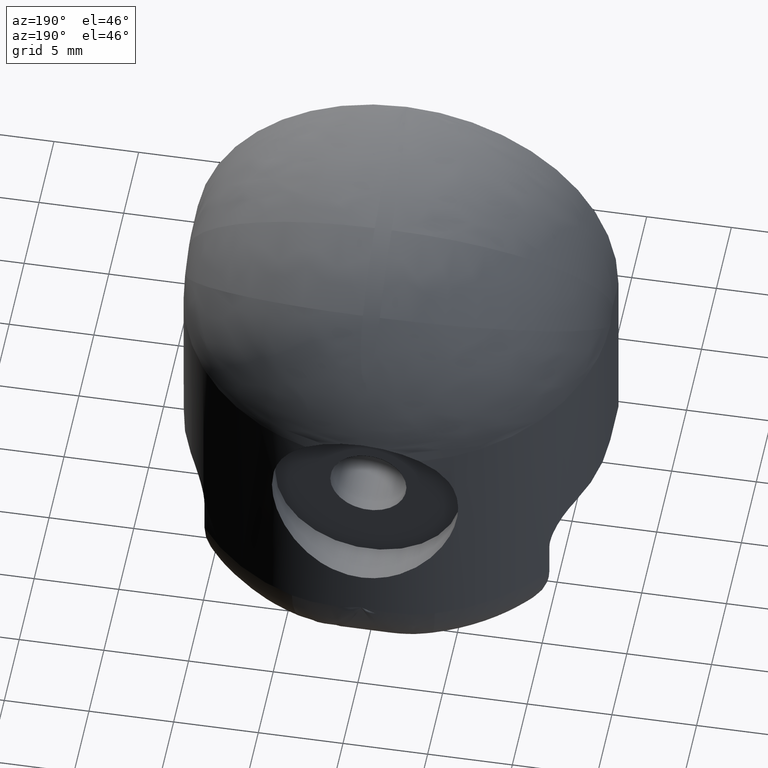
[diagram: clean part render]
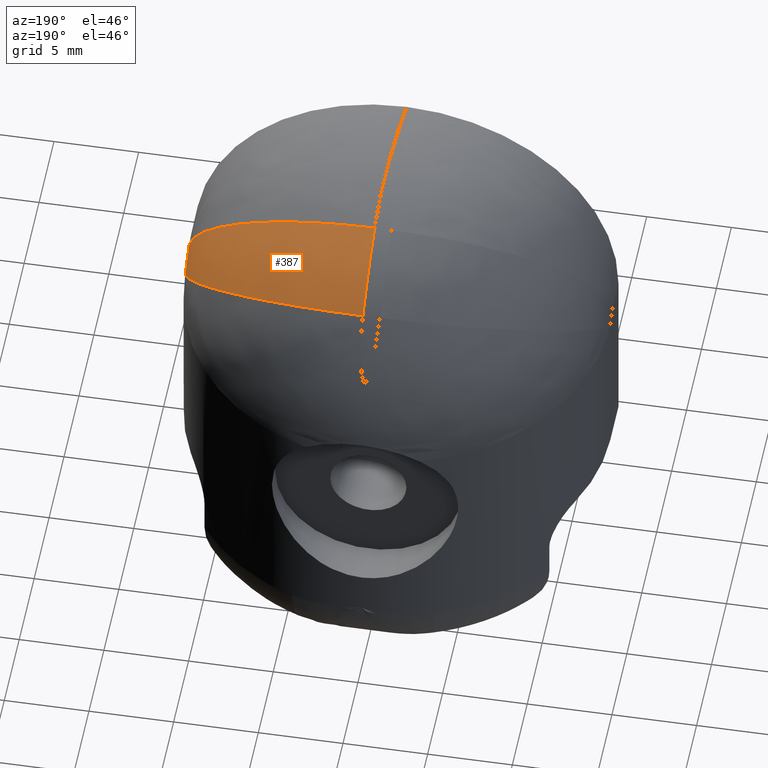
[diagram: same view with one face highlighted and labeled with its STEP entity id]
A machine part, auxiliary view. The second image highlights one B-rep face of the part: STEP entity #387.
In plain terms, the highlighted face is a freeform B-spline surface patch.
Its self-contained STEP definition (entity closure, byte-faithful):
#16=(
BOUNDED_SURFACE()
B_SPLINE_SURFACE(2,2,((#1181,#1182,#1183),(#1184,#1185,#1186),(#1187,#1188,
#1189)),.UNSPECIFIED.,.F.,.F.,.F.)
B_SPLINE_SURFACE_WITH_KNOTS((3,3),(3,3),(-1.44560289664734E-16,1.5707963267949),
(2.27793224240123,2.60955888874682),.UNSPECIFIED.)
GEOMETRIC_REPRESENTATION_ITEM()
RATIONAL_B_SPLINE_SURFACE(((1.,0.986284438878914,1.),(0.707106781186548,
0.69740841491005,0.707106781186548),(1.,0.986284438878914,1.)))
REPRESENTATION_ITEM('')
SURFACE()
);
#86=FACE_OUTER_BOUND('',#111,.T.);
#111=EDGE_LOOP('',(#329,#330,#331,#332));
#152=CIRCLE('',#439,12.);
#155=CIRCLE('',#442,12.);
#156=CIRCLE('',#443,3.61734693877551);
#157=CIRCLE('',#444,15.6173469387755);
#177=VERTEX_POINT('',#828);
#188=VERTEX_POINT('',#1062);
#189=VERTEX_POINT('',#1156);
#190=VERTEX_POINT('',#1157);
#235=EDGE_CURVE('',#188,#177,#152,.T.);
#238=EDGE_CURVE('',#189,#190,#155,.T.);
#241=EDGE_CURVE('',#189,#177,#156,.T.);
#242=EDGE_CURVE('',#188,#190,#157,.T.);
#329=ORIENTED_EDGE('',*,*,#238,.F.);
#330=ORIENTED_EDGE('',*,*,#241,.T.);
#331=ORIENTED_EDGE('',*,*,#235,.F.);
#332=ORIENTED_EDGE('',*,*,#242,.T.);
#387=ADVANCED_FACE('',(#86),#16,.F.);
#439=AXIS2_PLACEMENT_3D('',#1078,#514,#515);
#442=AXIS2_PLACEMENT_3D('',#1158,#520,#521);
#443=AXIS2_PLACEMENT_3D('',#1190,#522,#523);
#444=AXIS2_PLACEMENT_3D('',#1191,#524,#525);
#514=DIRECTION('center_axis',(2.10369389344927E-16,0.649659088089581,-0.760225669957687));
#515=DIRECTION('ref_axis',(5.78241158658936E-18,0.760225669957687,0.649659088089581));
#520=DIRECTION('center_axis',(-3.16482927888337E-16,-0.861777150916785,
0.507287041188466));
#521=DIRECTION('ref_axis',(1.,-4.04768811061255E-17,5.55111512312578E-16));
#522=DIRECTION('center_axis',(-1.,0.,0.));
#523=DIRECTION('ref_axis',(0.,0.695248106443174,0.718769831369668));
#524=DIRECTION('center_axis',(1.,0.,0.));
#525=DIRECTION('ref_axis',(0.,0.695248106443174,0.718769831369668));
#828=CARTESIAN_POINT('',(12.5,1.37499999999999,2.08269537477302));
#1062=CARTESIAN_POINT('',(0.499999999999997,10.4977080394922,9.87860443184799));
#1078=CARTESIAN_POINT('Origin',(0.499999999999996,1.375,2.08269537477302));
#1156=CARTESIAN_POINT('',(12.5,0.460033225523581,2.85));
#1157=CARTESIAN_POINT('',(0.499999999999998,6.54747771978518,13.1913258110014));
#1158=CARTESIAN_POINT('Origin',(0.499999999999999,0.460033225523582,2.84999999999999));
#1181=CARTESIAN_POINT('Ctrl Pts',(0.499999999999997,10.4977080394922,9.87860443184799));
#1182=CARTESIAN_POINT('Ctrl Pts',(0.499999999999997,8.79978459355725,11.865500348318));
#1183=CARTESIAN_POINT('Ctrl Pts',(0.499999999999997,6.54747771978517,13.1913258110014));
#1184=CARTESIAN_POINT('Ctrl Pts',(12.5,10.4977080394922,9.87860443184799));
#1185=CARTESIAN_POINT('Ctrl Pts',(12.5,8.79978459355725,11.865500348318));
#1186=CARTESIAN_POINT('Ctrl Pts',(12.5,6.54747771978517,13.1913258110014));
#1187=CARTESIAN_POINT('Ctrl Pts',(12.5,1.375,2.08269537477302));
#1188=CARTESIAN_POINT('Ctrl Pts',(12.5,0.981720769954943,2.54290746388677));
#1189=CARTESIAN_POINT('Ctrl Pts',(12.5,0.460033225523578,2.85));
#1190=CARTESIAN_POINT('Origin',(12.5,-1.37500000000001,-0.267346938775521));
#1191=CARTESIAN_POINT('Origin',(0.499999999999998,-1.37500000000001,-0.267346938775521));